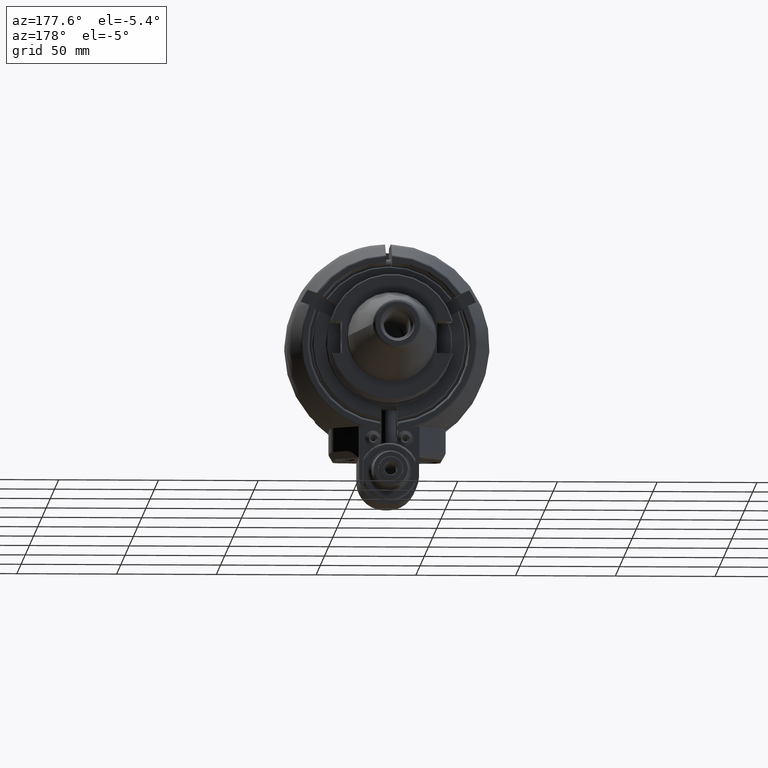
[diagram: clean part render]
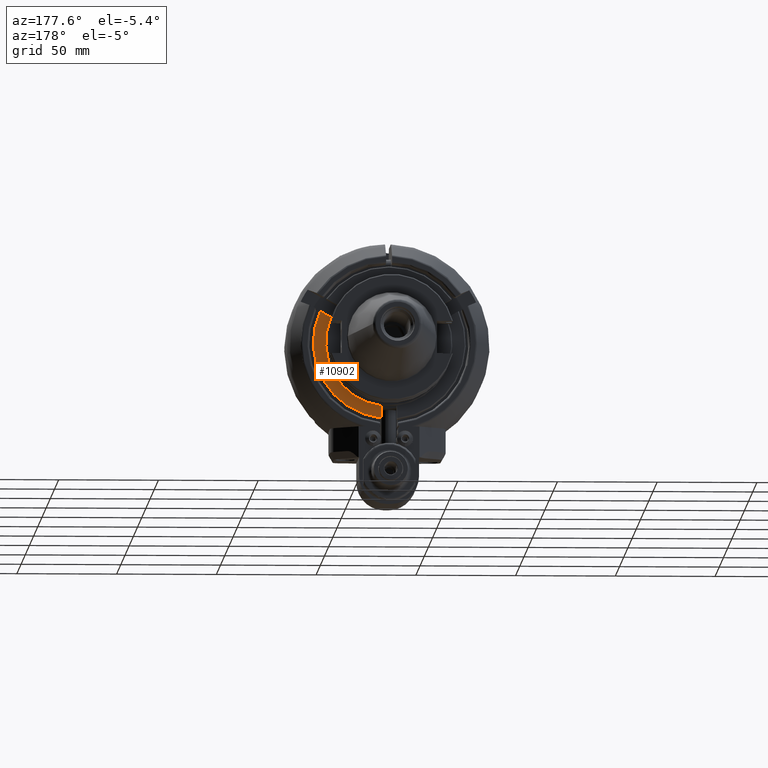
[diagram: same view with one face highlighted and labeled with its STEP entity id]
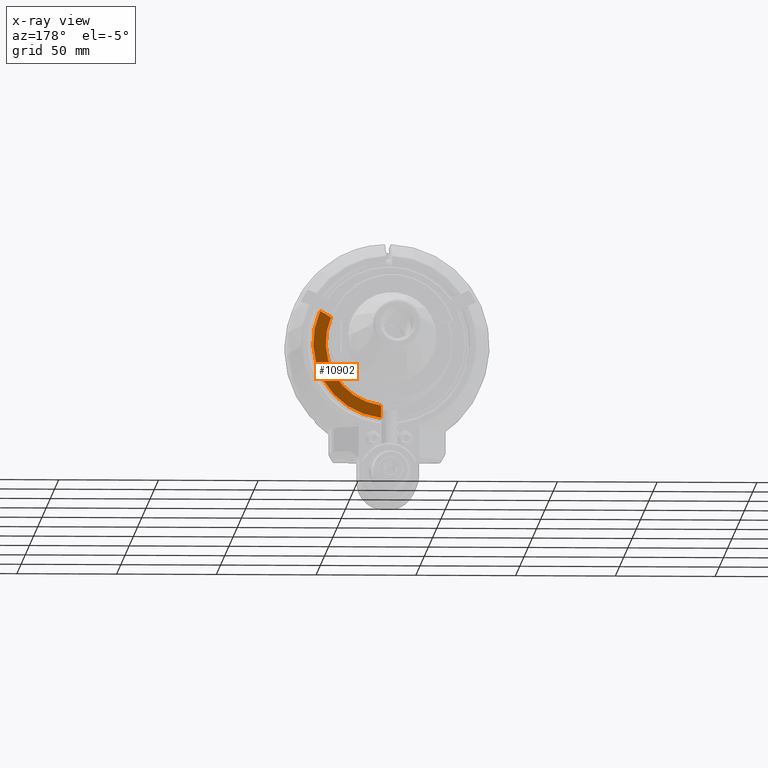
[diagram: x-ray of the same camera — body ghosted, the highlighted face saturated]
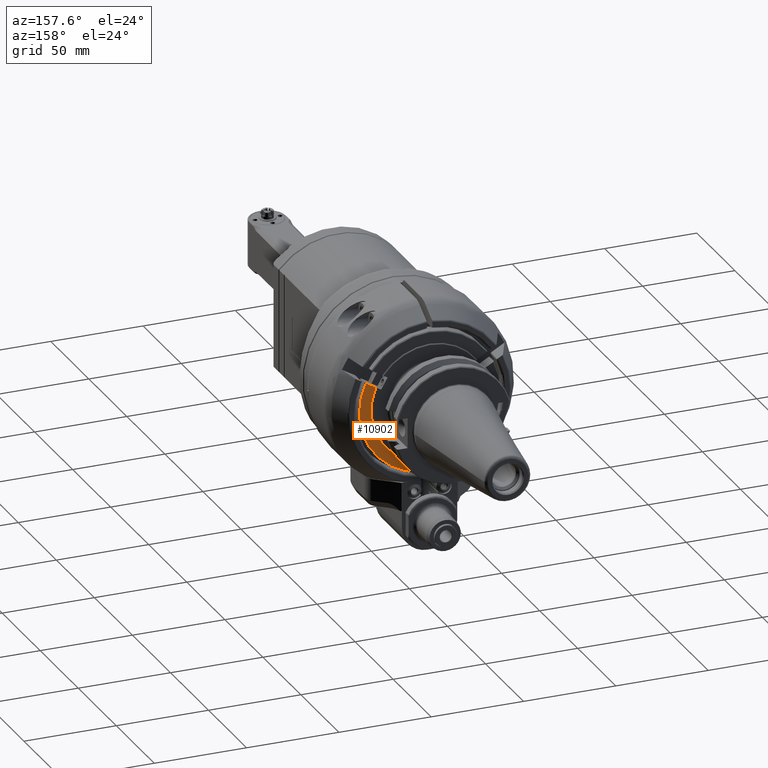
[diagram: same view with one face highlighted and labeled with its STEP entity id]
A machine part, auxiliary view. The second image highlights one B-rep face of the part: STEP entity #10902.
The next image is the same camera in x-ray: the body ghosted, the highlighted face saturated — about 0% of this face is hidden behind the body in this view.
A second angle (auxiliary view) of the same face is appended — the face is thin or edge-on in the first view.
In plain terms, the highlighted planar face has unit normal (0, 1, 0).
Its self-contained STEP definition (entity closure, byte-faithful):
#1097=LINE('',#21203,#1829);
#1132=LINE('',#21401,#1864);
#1829=VECTOR('',#14840,0.393700787401575);
#1864=VECTOR('',#14969,0.24732187130507);
#2703=FACE_OUTER_BOUND('',#3409,.T.);
#3409=EDGE_LOOP('',(#9345,#9346,#9347,#9348));
#4000=CIRCLE('',#12093,1.25);
#4025=CIRCLE('',#12154,1.49606299212598);
#4917=VERTEX_POINT('',#21200);
#4918=VERTEX_POINT('',#21202);
#4931=VERTEX_POINT('',#21246);
#4971=VERTEX_POINT('',#21397);
#6364=EDGE_CURVE('',#4918,#4917,#1097,.T.);
#6381=EDGE_CURVE('',#4917,#4931,#4000,.T.);
#6443=EDGE_CURVE('',#4931,#4971,#1132,.T.);
#6473=EDGE_CURVE('',#4971,#4918,#4025,.T.);
#9345=ORIENTED_EDGE('',*,*,#6473,.T.);
#9346=ORIENTED_EDGE('',*,*,#6364,.T.);
#9347=ORIENTED_EDGE('',*,*,#6381,.T.);
#9348=ORIENTED_EDGE('',*,*,#6443,.T.);
#10137=PLANE('',#12153);
#10902=ADVANCED_FACE('',(#2703),#10137,.T.);
#12093=AXIS2_PLACEMENT_3D('',#21250,#14859,#14860);
#12153=AXIS2_PLACEMENT_3D('',#21560,#15025,#15026);
#12154=AXIS2_PLACEMENT_3D('',#21561,#15027,#15028);
#14840=DIRECTION('',(0.,0.,1.));
#14859=DIRECTION('center_axis',(0.,-1.,0.));
#14860=DIRECTION('ref_axis',(0.86926923622807,0.,0.494338947431283));
#14969=DIRECTION('',(0.866025403784429,0.,0.500000000000017));
#15025=DIRECTION('center_axis',(0.,1.,0.));
#15026=DIRECTION('ref_axis',(-0.86926923622807,0.,-0.494338947431283));
#15027=DIRECTION('center_axis',(0.,1.,0.));
#15028=DIRECTION('ref_axis',(0.908396800327097,0.,0.418109140243899));
#21200=CARTESIAN_POINT('',(0.157461045574907,1.55506119662759,-1.24010011948072));
#21202=CARTESIAN_POINT('',(0.15748031496063,1.55511811023622,-1.48775146674724));
#21203=CARTESIAN_POINT('',(0.15748031496063,1.55511811023622,-0.966595528352362));
#21246=CARTESIAN_POINT('',(1.14483181167323,1.55511811023622,0.501856675735827));
#21250=CARTESIAN_POINT('Origin',(0.,1.55511811023622,0.));
#21397=CARTESIAN_POINT('',(1.35901883513504,1.55511811023622,0.625517611388583));
#21401=CARTESIAN_POINT('',(1.14483181167323,1.55511811023622,0.501856675735827));
#21560=CARTESIAN_POINT('Origin',(-1.21866337006063,1.55511811023622,-0.693033576389764));
#21561=CARTESIAN_POINT('Origin',(0.,1.55511811023622,0.));